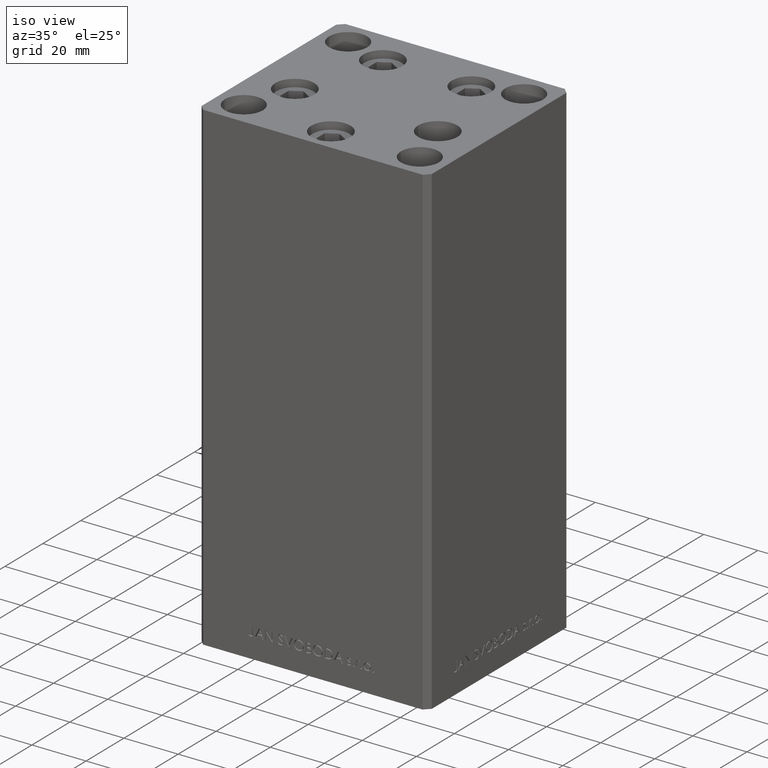
[diagram: clean part render]
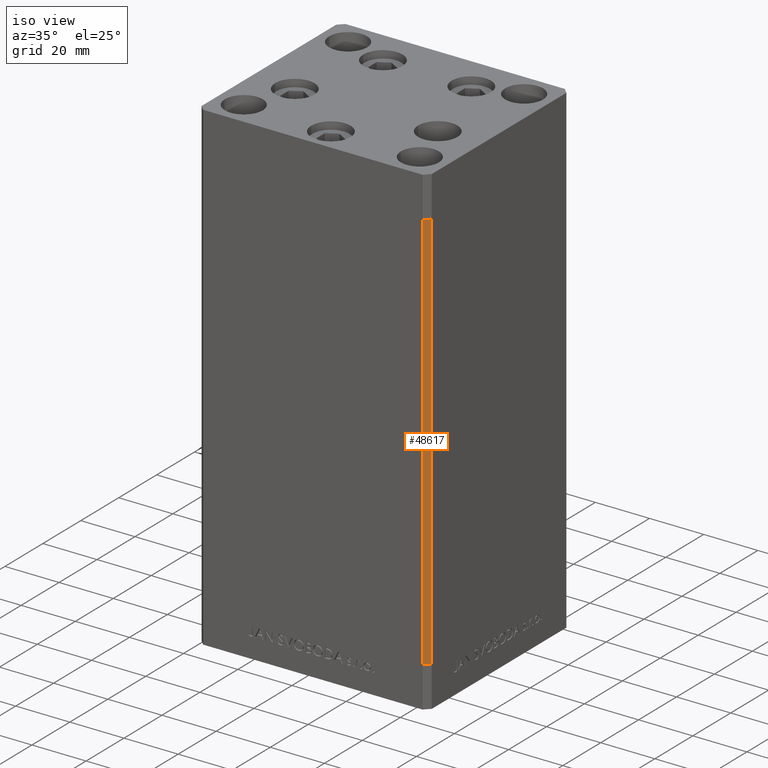
[diagram: same view with one face highlighted and labeled with its STEP entity id]
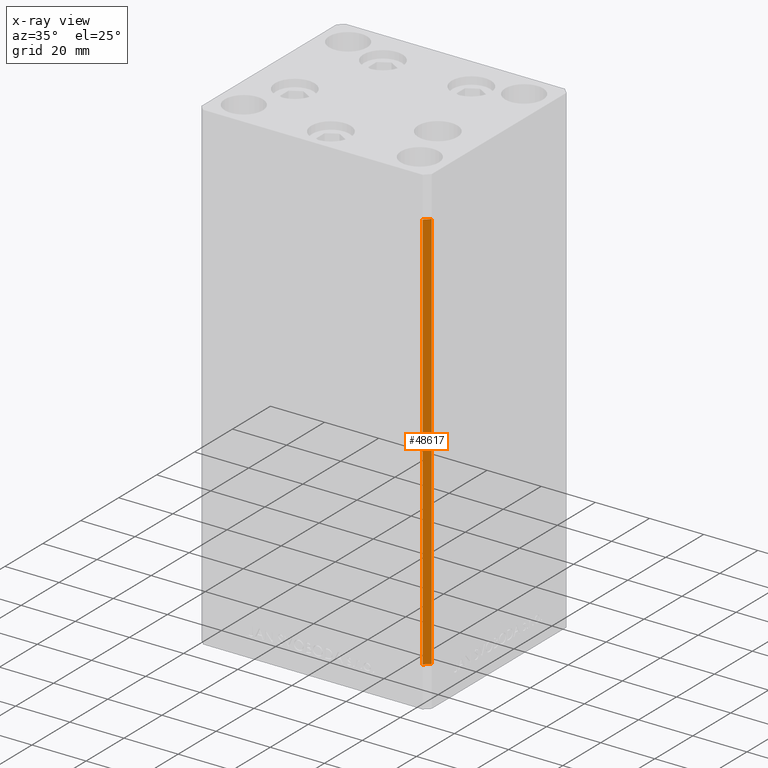
[diagram: x-ray of the same camera — body ghosted, the highlighted face saturated]
A machine part, iso view. The second image highlights one B-rep face of the part: STEP entity #48617.
The next image is the same camera in x-ray: the body ghosted, the highlighted face saturated — about 0% of this face is hidden behind the body in this view.
In plain terms, the highlighted planar face has unit normal (0.7071, -0.7071, 0).
Its self-contained STEP definition (entity closure, byte-faithful):
#1350 = CARTESIAN_POINT ( 'NONE',  ( 42.49999999999998579, -35.50000000000000711, 148.5000000000000000 ) ) ;
#1598 = DIRECTION ( 'NONE',  ( -0.000000000000000000, -0.000000000000000000, -1.000000000000000000 ) ) ;
#2169 = VERTEX_POINT ( 'NONE', #45839 ) ;
#2545 = VECTOR ( 'NONE', #10436, 1000.000000000000000 ) ;
#3251 = EDGE_CURVE ( 'NONE', #46728, #2169, #28263, .T. ) ;
#3737 = DIRECTION ( 'NONE',  ( -0.7071067811865474617, -0.7071067811865474617, 0.000000000000000000 ) ) ;
#4445 = CARTESIAN_POINT ( 'NONE',  ( 40.49999999999998579, -37.50000000000000711, 148.5000000000000000 ) ) ;
#9292 = ORIENTED_EDGE ( 'NONE', *, *, #3251, .T. ) ;
#10436 = DIRECTION ( 'NONE',  ( -0.000000000000000000, -0.000000000000000000, -1.000000000000000000 ) ) ;
#11185 = CARTESIAN_POINT ( 'NONE',  ( 42.49999999999998579, -35.50000000000000711, 148.5000000000000000 ) ) ;
#14471 = CARTESIAN_POINT ( 'NONE',  ( 42.49999999999998579, -35.50000000000000711, 0.000000000000000000 ) ) ;
#14527 = VECTOR ( 'NONE', #34015, 1000.000000000000114 ) ;
#15347 = CARTESIAN_POINT ( 'NONE',  ( 42.49999999999998579, -35.50000000000000711, 148.5000000000000000 ) ) ;
#17095 = VERTEX_POINT ( 'NONE', #14471 ) ;
#18919 = LINE ( 'NONE', #26839, #14527 ) ;
#19302 = VECTOR ( 'NONE', #1598, 1000.000000000000000 ) ;
#20143 = LINE ( 'NONE', #1350, #19302 ) ;
#21153 = EDGE_CURVE ( 'NONE', #40313, #46728, #41836, .T. ) ;
#24079 = EDGE_CURVE ( 'NONE', #17095, #2169, #18919, .T. ) ;
#26839 = CARTESIAN_POINT ( 'NONE',  ( 42.49999999999998579, -35.50000000000000711, 0.000000000000000000 ) ) ;
#28263 = LINE ( 'NONE', #32472, #2545 ) ;
#28310 = AXIS2_PLACEMENT_3D ( 'NONE', #11185, #41377, #29261 ) ;
#29261 = DIRECTION ( 'NONE',  ( 0.7071067811865474617, 0.7071067811865474617, 0.000000000000000000 ) ) ;
#29977 = FACE_OUTER_BOUND ( 'NONE', #37198, .T. ) ;
#30908 = ORIENTED_EDGE ( 'NONE', *, *, #21153, .T. ) ;
#32472 = CARTESIAN_POINT ( 'NONE',  ( 40.49999999999998579, -37.50000000000000711, 148.5000000000000000 ) ) ;
#32631 = VECTOR ( 'NONE', #3737, 1000.000000000000114 ) ;
#34015 = DIRECTION ( 'NONE',  ( -0.7071067811865474617, -0.7071067811865474617, 0.000000000000000000 ) ) ;
#35044 = ORIENTED_EDGE ( 'NONE', *, *, #35091, .F. ) ;
#35091 = EDGE_CURVE ( 'NONE', #40313, #17095, #20143, .T. ) ;
#37090 = CARTESIAN_POINT ( 'NONE',  ( 42.49999999999998579, -35.50000000000000711, 148.5000000000000000 ) ) ;
#37198 = EDGE_LOOP ( 'NONE', ( #44011, #35044, #30908, #9292 ) ) ;
#40313 = VERTEX_POINT ( 'NONE', #37090 ) ;
#41377 = DIRECTION ( 'NONE',  ( 0.7071067811865475727, -0.7071067811865475727, 0.000000000000000000 ) ) ;
#41836 = LINE ( 'NONE', #15347, #32631 ) ;
#44011 = ORIENTED_EDGE ( 'NONE', *, *, #24079, .F. ) ;
#45077 = PLANE ( 'NONE',  #28310 ) ;
#45839 = CARTESIAN_POINT ( 'NONE',  ( 40.49999999999998579, -37.50000000000000711, 0.000000000000000000 ) ) ;
#46728 = VERTEX_POINT ( 'NONE', #4445 ) ;
#48617 = ADVANCED_FACE ( 'NONE', ( #29977 ), #45077, .T. ) ;